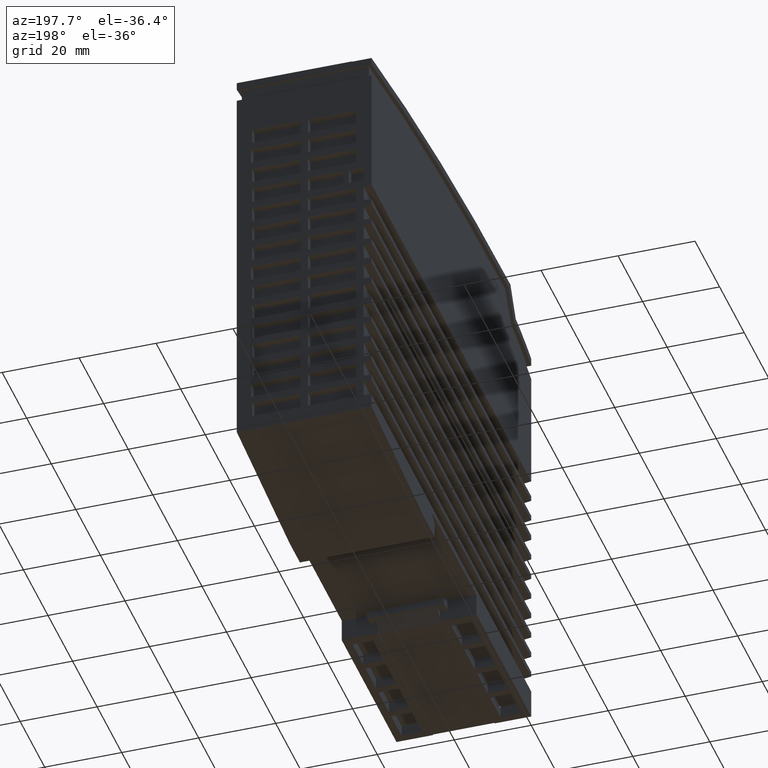
[diagram: clean part render]
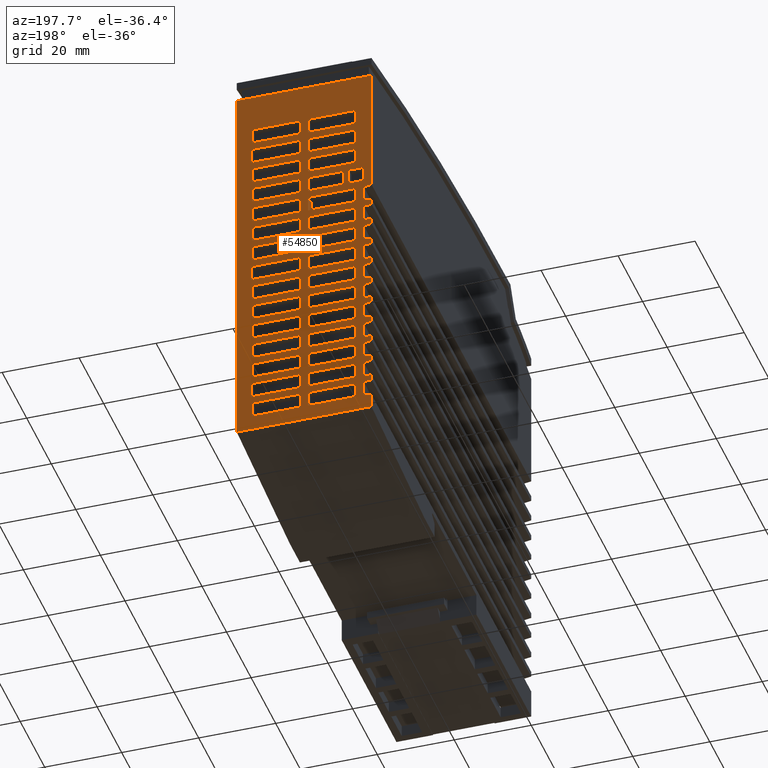
[diagram: same view with one face highlighted and labeled with its STEP entity id]
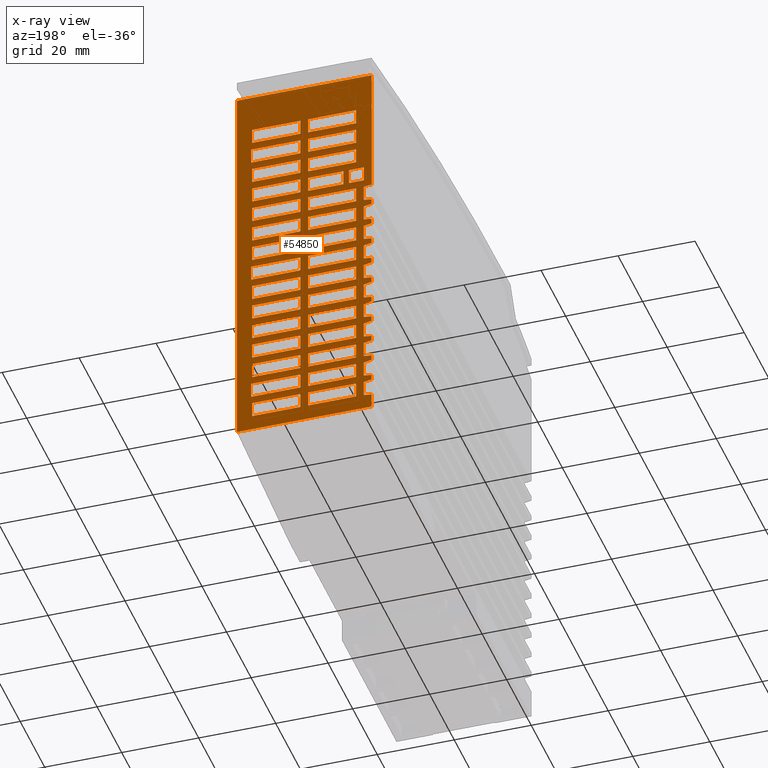
[diagram: x-ray of the same camera — body ghosted, the highlighted face saturated]
A machine part, auxiliary view. The second image highlights one B-rep face of the part: STEP entity #54850.
The next image is the same camera in x-ray: the body ghosted, the highlighted face saturated — about 0% of this face is hidden behind the body in this view.
In plain terms, the highlighted planar face has unit normal (0, 1, 0).
Its self-contained STEP definition (entity closure, byte-faithful):
#2260=CARTESIAN_POINT('',(99.8535034967815,130.,-43.5));
#2270=VERTEX_POINT('',#2260);
#2300=CARTESIAN_POINT('',(0.,130.,-43.5));
#2310=DIRECTION('',(-1.,0.,0.));
#2320=VECTOR('',#2310,1.);
#2330=LINE('',#2300,#2320);
#2340=CARTESIAN_POINT('',(-1.9999999999992,130.,-43.5));
#2350=VERTEX_POINT('',#2340);
#2360=EDGE_CURVE('',#2270,#2350,#2330,.T.);
#3640=CARTESIAN_POINT('',(-1.99999999999918,130.,-8.5));
#3650=VERTEX_POINT('',#3640);
#3700=CARTESIAN_POINT('',(-1.99999999999921,130.,0.));
#3710=DIRECTION('',(0.,0.,-1.));
#3720=VECTOR('',#3710,1.);
#3730=LINE('',#3700,#3720);
#3740=EDGE_CURVE('',#3650,#2350,#3730,.T.);
#4390=CARTESIAN_POINT('',(99.8535034967815,130.,-8.5));
#4400=VERTEX_POINT('',#4390);
#4430=CARTESIAN_POINT('',(99.8535034967811,130.,-44.0000000000083));
#4440=DIRECTION('',(0.,0.,1.));
#4450=VECTOR('',#4440,1.);
#4460=LINE('',#4430,#4450);
#4470=EDGE_CURVE('',#2270,#4400,#4460,.T.);
#9950=CARTESIAN_POINT('',(44.,130.,-12.5));
#9960=VERTEX_POINT('',#9950);
#10130=CARTESIAN_POINT('',(48.,130.,-12.5));
#10140=VERTEX_POINT('',#10130);
#10170=CARTESIAN_POINT('',(0.,130.,-12.5));
#10180=DIRECTION('',(-1.,0.,0.));
#10190=VECTOR('',#10180,1.);
#10200=LINE('',#10170,#10190);
#10210=EDGE_CURVE('',#10140,#9960,#10200,.T.);
#10960=CARTESIAN_POINT('',(38.,130.,-12.5));
#10970=VERTEX_POINT('',#10960);
#11140=CARTESIAN_POINT('',(42.,130.,-12.5));
#11150=VERTEX_POINT('',#11140);
#11180=CARTESIAN_POINT('',(0.,130.,-12.5));
#11190=DIRECTION('',(-1.,0.,0.));
#11200=VECTOR('',#11190,1.);
#11210=LINE('',#11180,#11200);
#11220=EDGE_CURVE('',#11150,#10970,#11210,.T.);
#11430=CARTESIAN_POINT('',(7.99834045293001,130.,-27.));
#11440=VERTEX_POINT('',#11430);
#11610=CARTESIAN_POINT('',(12.,130.,-27.));
#11620=VERTEX_POINT('',#11610);
#11650=CARTESIAN_POINT('',(0.,130.,-27.));
#11660=DIRECTION('',(-1.,0.,0.));
#11670=VECTOR('',#11660,1.);
#11680=LINE('',#11650,#11670);
#11690=EDGE_CURVE('',#11620,#11440,#11680,.T.);
#12000=CARTESIAN_POINT('',(54.3000000000001,130.,-8.5));
#12010=VERTEX_POINT('',#12000);
#12040=CARTESIAN_POINT('',(0.,130.,-8.5));
#12050=DIRECTION('',(-1.,0.,0.));
#12060=VECTOR('',#12050,1.);
#12070=LINE('',#12040,#12060);
#12080=CARTESIAN_POINT('',(55.6999999999999,130.,-8.5));
#12090=VERTEX_POINT('',#12080);
#12100=EDGE_CURVE('',#12090,#12010,#12070,.T.);
#12370=CARTESIAN_POINT('',(26.,130.,-39.5));
#12380=VERTEX_POINT('',#12370);
#12550=CARTESIAN_POINT('',(26.,130.,-27.));
#12560=VERTEX_POINT('',#12550);
#12590=CARTESIAN_POINT('',(26.,130.,0.));
#12600=DIRECTION('',(0.,0.,-1.));
#12610=VECTOR('',#12600,1.);
#12620=LINE('',#12590,#12610);
#12630=EDGE_CURVE('',#12560,#12380,#12620,.T.);
#12940=CARTESIAN_POINT('',(36.3000000000004,130.,-8.5));
#12950=VERTEX_POINT('',#12940);
#12980=CARTESIAN_POINT('',(0.,130.,-8.5));
#12990=DIRECTION('',(-1.,0.,0.));
#13000=VECTOR('',#12990,1.);
#13010=LINE('',#12980,#13000);
#13020=CARTESIAN_POINT('',(37.6999999999996,130.,-8.50000000000001));
#13030=VERTEX_POINT('',#13020);
#13040=EDGE_CURVE('',#13030,#12950,#13010,.T.);
#13690=CARTESIAN_POINT('',(79.99834045293,130.,-27.));
#13700=VERTEX_POINT('',#13690);
#13870=CARTESIAN_POINT('',(84.,130.,-27.));
#13880=VERTEX_POINT('',#13870);
#13910=CARTESIAN_POINT('',(0.,130.,-27.));
#13920=DIRECTION('',(-1.,0.,0.));
#13930=VECTOR('',#13920,1.);
#13940=LINE('',#13910,#13930);
#13950=EDGE_CURVE('',#13880,#13700,#13940,.T.);
#14160=CARTESIAN_POINT('',(2.,130.,-27.));
#14170=VERTEX_POINT('',#14160);
#14340=CARTESIAN_POINT('',(6.,130.,-27.));
#14350=VERTEX_POINT('',#14340);
#14380=CARTESIAN_POINT('',(0.,130.,-27.));
#14390=DIRECTION('',(-1.,0.,0.));
#14400=VECTOR('',#14390,1.);
#14410=LINE('',#14380,#14400);
#14420=EDGE_CURVE('',#14350,#14170,#14410,.T.);
#15050=CARTESIAN_POINT('',(32.,130.,-12.5));
#15060=VERTEX_POINT('',#15050);
#15230=CARTESIAN_POINT('',(36.,130.,-12.5));
#15240=VERTEX_POINT('',#15230);
#15270=CARTESIAN_POINT('',(0.,130.,-12.5));
#15280=DIRECTION('',(-1.,0.,0.));
#15290=VECTOR('',#15280,1.);
#15300=LINE('',#15270,#15290);
#15310=EDGE_CURVE('',#15240,#15060,#15300,.T.);
#15520=CARTESIAN_POINT('',(50.,130.,-25.));
#15530=VERTEX_POINT('',#15520);
#15700=CARTESIAN_POINT('',(50.,130.,-12.5));
#15710=VERTEX_POINT('',#15700);
#15740=CARTESIAN_POINT('',(50.,130.,0.));
#15750=DIRECTION('',(0.,0.,-1.));
#15760=VECTOR('',#15750,1.);
#15770=LINE('',#15740,#15760);
#15780=EDGE_CURVE('',#15710,#15530,#15770,.T.);
#16080=CARTESIAN_POINT('',(36.,130.,-25.));
#16090=VERTEX_POINT('',#16080);
#16120=CARTESIAN_POINT('',(36.,130.,0.));
#16130=DIRECTION('',(0.,0.,1.));
#16140=VECTOR('',#16130,1.);
#16150=LINE('',#16120,#16140);
#16160=EDGE_CURVE('',#16090,#15240,#16150,.T.);
#16370=CARTESIAN_POINT('',(66.,130.,-12.5));
#16380=VERTEX_POINT('',#16370);
#16460=CARTESIAN_POINT('',(66.,130.,-25.));
#16470=VERTEX_POINT('',#16460);
#16500=CARTESIAN_POINT('',(66.,130.,0.));
#16510=DIRECTION('',(0.,0.,1.));
#16520=VECTOR('',#16510,1.);
#16530=LINE('',#16500,#16520);
#16540=EDGE_CURVE('',#16470,#16380,#16530,.T.);
#17290=CARTESIAN_POINT('',(6.,130.,-39.5));
#17300=VERTEX_POINT('',#17290);
#17470=CARTESIAN_POINT('',(2.,130.,-39.5));
#17480=VERTEX_POINT('',#17470);
#17510=CARTESIAN_POINT('',(0.,130.,-39.5));
#17520=DIRECTION('',(1.,0.,0.));
#17530=VECTOR('',#17520,1.);
#17540=LINE('',#17510,#17530);
#17550=EDGE_CURVE('',#17480,#17300,#17540,.T.);
#17760=CARTESIAN_POINT('',(14.,130.,-39.5));
#17770=VERTEX_POINT('',#17760);
#17940=CARTESIAN_POINT('',(14.,130.,-27.));
#17950=VERTEX_POINT('',#17940);
#17980=CARTESIAN_POINT('',(14.,130.,0.));
#17990=DIRECTION('',(0.,0.,-1.));
#18000=VECTOR('',#17990,1.);
#18010=LINE('',#17980,#18000);
#18020=EDGE_CURVE('',#17950,#17770,#18010,.T.);
#18230=CARTESIAN_POINT('',(48.,130.,-25.));
#18240=VERTEX_POINT('',#18230);
#18410=CARTESIAN_POINT('',(44.,130.,-25.));
#18420=VERTEX_POINT('',#18410);
#18450=CARTESIAN_POINT('',(0.,130.,-25.));
#18460=DIRECTION('',(1.,0.,0.));
#18470=VECTOR('',#18460,1.);
#18480=LINE('',#18450,#18470);
#18490=EDGE_CURVE('',#18420,#18240,#18480,.T.);
#18790=CARTESIAN_POINT('',(84.,130.,-39.75833766019));
#18800=VERTEX_POINT('',#18790);
#18830=CARTESIAN_POINT('',(84.,130.,0.));
#18840=DIRECTION('',(0.,0.,1.));
#18850=VECTOR('',#18840,1.);
#18860=LINE('',#18830,#18850);
#18870=EDGE_CURVE('',#18800,#13880,#18860,.T.);
#19080=CARTESIAN_POINT('',(7.99834045293001,130.,-39.75833766019));
#19090=VERTEX_POINT('',#19080);
#19140=CARTESIAN_POINT('',(7.99834045293001,130.,0.));
#19150=DIRECTION('',(0.,0.,-1.));
#19160=VECTOR('',#19150,1.);
#19170=LINE('',#19140,#19160);
#19180=EDGE_CURVE('',#11440,#19090,#19170,.T.);
#19480=CARTESIAN_POINT('',(42.,130.,-25.));
#19490=VERTEX_POINT('',#19480);
#19520=CARTESIAN_POINT('',(42.,130.,0.));
#19530=DIRECTION('',(0.,0.,1.));
#19540=VECTOR('',#19530,1.);
#19550=LINE('',#19520,#19540);
#19560=EDGE_CURVE('',#19490,#11150,#19550,.T.);
#19810=CARTESIAN_POINT('',(44.,130.,0.));
#19820=DIRECTION('',(0.,0.,-1.));
#19830=VECTOR('',#19820,1.);
#19840=LINE('',#19810,#19830);
#19850=EDGE_CURVE('',#9960,#18420,#19840,.T.);
#20060=CARTESIAN_POINT('',(86.,130.,-27.));
#20070=VERTEX_POINT('',#20060);
#20240=CARTESIAN_POINT('',(90.,130.,-27.));
#20250=VERTEX_POINT('',#20240);
#20280=CARTESIAN_POINT('',(0.,130.,-27.));
#20290=DIRECTION('',(-1.,0.,0.));
#20300=VECTOR('',#20290,1.);
#20310=LINE('',#20280,#20300);
#20320=EDGE_CURVE('',#20250,#20070,#20310,.T.);
#20530=CARTESIAN_POINT('',(32.,130.,-39.5));
#20540=VERTEX_POINT('',#20530);
#20710=CARTESIAN_POINT('',(32.,130.,-27.));
#20720=VERTEX_POINT('',#20710);
#20750=CARTESIAN_POINT('',(32.,130.,0.));
#20760=DIRECTION('',(0.,0.,-1.));
#20770=VECTOR('',#20760,1.);
#20780=LINE('',#20750,#20770);
#20790=EDGE_CURVE('',#20720,#20540,#20780,.T.);
#21000=CARTESIAN_POINT('',(78.,130.,-27.));
#21010=VERTEX_POINT('',#21000);
#21180=CARTESIAN_POINT('',(78.,130.,-39.5));
#21190=VERTEX_POINT('',#21180);
#21220=CARTESIAN_POINT('',(78.,130.,0.));
#21230=DIRECTION('',(0.,0.,1.));
#21240=VECTOR('',#21230,1.);
#21250=LINE('',#21220,#21240);
#21260=EDGE_CURVE('',#21190,#21010,#21250,.T.);
#21470=CARTESIAN_POINT('',(90.,130.,-25.));
#21480=VERTEX_POINT('',#21470);
#21650=CARTESIAN_POINT('',(86.,130.,-25.));
#21660=VERTEX_POINT('',#21650);
#21690=CARTESIAN_POINT('',(0.,130.,-25.));
#21700=DIRECTION('',(1.,0.,0.));
#21710=VECTOR('',#21700,1.);
#21720=LINE('',#21690,#21710);
#21730=EDGE_CURVE('',#21660,#21480,#21720,.T.);
#21940=CARTESIAN_POINT('',(79.99834045293,130.,-39.75833766019));
#21950=VERTEX_POINT('',#21940);
#22070=CARTESIAN_POINT('',(79.99834045293,130.,0.));
#22080=DIRECTION('',(0.,0.,-1.));
#22090=VECTOR('',#22080,1.);
#22100=LINE('',#22070,#22090);
#22110=EDGE_CURVE('',#13700,#21950,#22100,.T.);
#22420=CARTESIAN_POINT('',(29.9999999999995,130.,-10.5));
#22430=VERTEX_POINT('',#22420);
#22460=CARTESIAN_POINT('',(31.575000000004,130.,0.));
#22470=DIRECTION('',(-0.148340452930653,0.,-0.988936352868236));
#22480=VECTOR('',#22470,1.);
#22490=LINE('',#22460,#22480);
#22500=CARTESIAN_POINT('',(30.3000000000004,130.,-8.50000000000001));
#22510=VERTEX_POINT('',#22500);
#22520=EDGE_CURVE('',#22510,#22430,#22490,.T.);
#22790=CARTESIAN_POINT('',(30.,130.,-39.5));
#22800=VERTEX_POINT('',#22790);
#22920=CARTESIAN_POINT('',(0.,130.,-39.5));
#22930=DIRECTION('',(1.,0.,0.));
#22940=VECTOR('',#22930,1.);
#22950=LINE('',#22920,#22940);
#22960=EDGE_CURVE('',#12380,#22800,#22950,.T.);
#23430=CARTESIAN_POINT('',(6.42499999999596,130.,0.));
#23440=DIRECTION('',(-0.148340452930656,0.,0.988936352868236));
#23450=VECTOR('',#23440,1.);
#23460=LINE('',#23430,#23450);
#23470=CARTESIAN_POINT('',(8.00000000000043,130.,-10.5));
#23480=VERTEX_POINT('',#23470);
#23490=CARTESIAN_POINT('',(7.69999999999958,130.,-8.50000000000001));
#23500=VERTEX_POINT('',#23490);
#23510=EDGE_CURVE('',#23480,#23500,#23460,.T.);
#24040=CARTESIAN_POINT('',(2.00000000000043,130.,-10.5));
#24050=VERTEX_POINT('',#24040);
#24080=CARTESIAN_POINT('',(0.,130.,-10.5));
#24090=DIRECTION('',(1.,0.,0.));
#24100=VECTOR('',#24090,1.);
#24110=LINE('',#24080,#24100);
#24120=CARTESIAN_POINT('',(5.99999999999955,130.,-10.5));
#24130=VERTEX_POINT('',#24120);
#24140=EDGE_CURVE('',#24050,#24130,#24110,.T.);
#24600=CARTESIAN_POINT('',(18.,130.,-12.5));
#24610=VERTEX_POINT('',#24600);
#24780=CARTESIAN_POINT('',(18.,130.,-25.));
#24790=VERTEX_POINT('',#24780);
#24820=CARTESIAN_POINT('',(18.,130.,0.));
#24830=DIRECTION('',(0.,0.,1.));
#24840=VECTOR('',#24830,1.);
#24850=LINE('',#24820,#24840);
#24860=EDGE_CURVE('',#24790,#24610,#24850,.T.);
#25120=CARTESIAN_POINT('',(7.57500000000396,130.,0.));
#25130=DIRECTION('',(-0.14834045293065,0.,-0.988936352868237));
#25140=VECTOR('',#25130,1.);
#25150=LINE('',#25120,#25140);
#25160=CARTESIAN_POINT('',(6.30000000000038,130.,-8.5));
#25170=VERTEX_POINT('',#25160);
#25180=EDGE_CURVE('',#25170,#24130,#25150,.T.);
#25450=CARTESIAN_POINT('',(90.,130.,-12.5));
#25460=VERTEX_POINT('',#25450);
#25580=CARTESIAN_POINT('',(90.,130.,0.));
#25590=DIRECTION('',(0.,0.,1.));
#25600=VECTOR('',#25590,1.);
#25610=LINE('',#25580,#25600);
#25620=EDGE_CURVE('',#21480,#25460,#25610,.T.);
#27680=CARTESIAN_POINT('',(26.,130.,-12.5));
#27690=VERTEX_POINT('',#27680);
#27860=CARTESIAN_POINT('',(30.,130.,-12.5));
#27870=VERTEX_POINT('',#27860);
#27900=CARTESIAN_POINT('',(0.,130.,-12.5));
#27910=DIRECTION('',(-1.,0.,0.));
#27920=VECTOR('',#27910,1.);
#27930=LINE('',#27900,#27920);
#27940=EDGE_CURVE('',#27870,#27690,#27930,.T.);
#28150=CARTESIAN_POINT('',(78.,130.,-12.5));
#28160=VERTEX_POINT('',#28150);
#28330=CARTESIAN_POINT('',(78.,130.,-25.));
#28340=VERTEX_POINT('',#28330);
#28370=CARTESIAN_POINT('',(78.,130.,0.));
#28380=DIRECTION('',(0.,0.,1.));
#28390=VECTOR('',#28380,1.);
#28400=LINE('',#28370,#28390);
#28410=EDGE_CURVE('',#28340,#28160,#28400,.T.);
#28620=CARTESIAN_POINT('',(74.,130.,-39.5));
#28630=VERTEX_POINT('',#28620);
#28800=CARTESIAN_POINT('',(74.,130.,-27.));
#28810=VERTEX_POINT('',#28800);
#28840=CARTESIAN_POINT('',(74.,130.,0.));
#28850=DIRECTION('',(0.,0.,-1.));
#28860=VECTOR('',#28850,1.);
#28870=LINE('',#28840,#28860);
#28880=EDGE_CURVE('',#28810,#28630,#28870,.T.);
#29090=CARTESIAN_POINT('',(8.,130.,-25.));
#29100=VERTEX_POINT('',#29090);
#29270=CARTESIAN_POINT('',(8.,130.,-12.5));
#29280=VERTEX_POINT('',#29270);
#29310=CARTESIAN_POINT('',(8.,130.,0.));
#29320=DIRECTION('',(0.,0.,-1.));
#29330=VECTOR('',#29320,1.);
#29340=LINE('',#29310,#29330);
#29350=EDGE_CURVE('',#29280,#29100,#29340,.T.);
#29560=CARTESIAN_POINT('',(24.,130.,-12.5));
#29570=VERTEX_POINT('',#29560);
#29740=CARTESIAN_POINT('',(24.,130.,-25.));
#29750=VERTEX_POINT('',#29740);
#29780=CARTESIAN_POINT('',(24.,130.,0.));
#29790=DIRECTION('',(0.,0.,1.));
#29800=VECTOR('',#29790,1.);
#29810=LINE('',#29780,#29800);
#29820=EDGE_CURVE('',#29750,#29570,#29810,.T.);
#31060=CARTESIAN_POINT('',(38.,130.,-39.5));
#31070=VERTEX_POINT('',#31060);
#31240=CARTESIAN_POINT('',(38.,130.,-27.));
#31250=VERTEX_POINT('',#31240);
#31280=CARTESIAN_POINT('',(38.,130.,0.));
#31290=DIRECTION('',(0.,0.,-1.));
#31300=VECTOR('',#31290,1.);
#31310=LINE('',#31280,#31300);
#31320=EDGE_CURVE('',#31250,#31070,#31310,.T.);
#32000=CARTESIAN_POINT('',(14.,130.,-25.));
#32010=VERTEX_POINT('',#32000);
#32180=CARTESIAN_POINT('',(14.,130.,-12.5));
#32190=VERTEX_POINT('',#32180);
#32220=CARTESIAN_POINT('',(14.,130.,0.));
#32230=DIRECTION('',(0.,0.,-1.));
#32240=VECTOR('',#32230,1.);
#32250=LINE('',#32220,#32240);
#32260=EDGE_CURVE('',#32190,#32010,#32250,.T.);
#32940=CARTESIAN_POINT('',(74.,130.,-12.5));
#32950=VERTEX_POINT('',#32940);
#33070=CARTESIAN_POINT('',(0.,130.,-12.5));
#33080=DIRECTION('',(-1.,0.,0.));
#33090=VECTOR('',#33080,1.);
#33100=LINE('',#33070,#33090);
#33110=EDGE_CURVE('',#28160,#32950,#33100,.T.);
#33410=CARTESIAN_POINT('',(30.,130.,-25.));
#33420=VERTEX_POINT('',#33410);
#33450=CARTESIAN_POINT('',(30.,130.,0.));
#33460=DIRECTION('',(0.,0.,1.));
#33470=VECTOR('',#33460,1.);
#33480=LINE('',#33450,#33470);
#33490=EDGE_CURVE('',#33420,#27870,#33480,.T.);
#33700=CARTESIAN_POINT('',(32.,130.,-25.));
#33710=VERTEX_POINT('',#33700);
#33830=CARTESIAN_POINT('',(32.,130.,0.));
#33840=DIRECTION('',(0.,0.,-1.));
#33850=VECTOR('',#33840,1.);
#33860=LINE('',#33830,#33850);
#33870=EDGE_CURVE('',#15060,#33710,#33860,.T.);
#34180=CARTESIAN_POINT('',(41.9999999999996,130.,-10.5));
#34190=VERTEX_POINT('',#34180);
#34220=CARTESIAN_POINT('',(43.575000000004,130.,0.));
#34230=DIRECTION('',(-0.148340452930654,0.,-0.988936352868236));
#34240=VECTOR('',#34230,1.);
#34250=LINE('',#34220,#34240);
#34260=CARTESIAN_POINT('',(42.3000000000004,130.,-8.5));
#34270=VERTEX_POINT('',#34260);
#34280=EDGE_CURVE('',#34270,#34190,#34250,.T.);
#34590=CARTESIAN_POINT('',(0.,130.,-25.));
#34600=DIRECTION('',(1.,0.,0.));
#34610=VECTOR('',#34600,1.);
#34620=LINE('',#34590,#34610);
#34630=EDGE_CURVE('',#33710,#16090,#34620,.T.);
#34940=CARTESIAN_POINT('',(50.0000000000004,130.,-10.5));
#34950=VERTEX_POINT('',#34940);
#34980=CARTESIAN_POINT('',(0.,130.,-10.5));
#34990=DIRECTION('',(1.,0.,0.));
#35000=VECTOR('',#34990,1.);
#35010=LINE('',#34980,#35000);
#35020=CARTESIAN_POINT('',(53.9999999999999,130.,-10.5));
#35030=VERTEX_POINT('',#35020);
#35040=EDGE_CURVE('',#34950,#35030,#35010,.T.);
#35730=CARTESIAN_POINT('',(60.,130.,-12.5));
#35740=VERTEX_POINT('',#35730);
#35910=CARTESIAN_POINT('',(60.,130.,-25.));
#35920=VERTEX_POINT('',#35910);
#35950=CARTESIAN_POINT('',(60.,130.,0.));
#35960=DIRECTION('',(0.,0.,1.));
#35970=VECTOR('',#35960,1.);
#35980=LINE('',#35950,#35970);
#35990=EDGE_CURVE('',#35920,#35740,#35980,.T.);
#36200=CARTESIAN_POINT('',(54.,130.,-12.5));
#36210=VERTEX_POINT('',#36200);
#36380=CARTESIAN_POINT('',(54.,130.,-25.));
#36390=VERTEX_POINT('',#36380);
#36420=CARTESIAN_POINT('',(54.,130.,0.));
#36430=DIRECTION('',(0.,0.,1.));
#36440=VECTOR('',#36430,1.);
#36450=LINE('',#36420,#36440);
#36460=EDGE_CURVE('',#36390,#36210,#36450,.T.);
#36670=CARTESIAN_POINT('',(84.,130.,-25.));
#36680=VERTEX_POINT('',#36670);
#36850=CARTESIAN_POINT('',(80.,130.,-25.));
#36860=VERTEX_POINT('',#36850);
#36890=CARTESIAN_POINT('',(0.,130.,-25.));
#36900=DIRECTION('',(1.,0.,0.));
#36910=VECTOR('',#36900,1.);
#36920=LINE('',#36890,#36910);
#36930=EDGE_CURVE('',#36860,#36680,#36920,.T.);
#37470=CARTESIAN_POINT('',(72.,130.,-27.));
#37480=VERTEX_POINT('',#37470);
#37650=CARTESIAN_POINT('',(72.,130.,-39.5));
#37660=VERTEX_POINT('',#37650);
#37690=CARTESIAN_POINT('',(72.,130.,0.));
#37700=DIRECTION('',(0.,0.,1.));
#37710=VECTOR('',#37700,1.);
#37720=LINE('',#37690,#37710);
#37730=EDGE_CURVE('',#37660,#37480,#37720,.T.);
#38300=CARTESIAN_POINT('',(30.424999999996,130.,0.));
#38310=DIRECTION('',(-0.148340452930654,0.,0.988936352868236));
#38320=VECTOR('',#38310,1.);
#38330=LINE('',#38300,#38320);
#38340=CARTESIAN_POINT('',(32.0000000000004,130.,-10.5));
#38350=VERTEX_POINT('',#38340);
#38360=CARTESIAN_POINT('',(31.6999999999996,130.,-8.50000000000001));
#38370=VERTEX_POINT('',#38360);
#38380=EDGE_CURVE('',#38350,#38370,#38330,.T.);
#38810=CARTESIAN_POINT('',(62.,130.,-27.));
#38820=VERTEX_POINT('',#38810);
#38990=CARTESIAN_POINT('',(66.,130.,-27.));
#39000=VERTEX_POINT('',#38990);
#39030=CARTESIAN_POINT('',(0.,130.,-27.));
#39040=DIRECTION('',(-1.,0.,0.));
#39050=VECTOR('',#39040,1.);
#39060=LINE('',#39030,#39050);
#39070=EDGE_CURVE('',#39000,#38820,#39060,.T.);
#39750=CARTESIAN_POINT('',(18.,130.,-39.5));
#39760=VERTEX_POINT('',#39750);
#39810=CARTESIAN_POINT('',(0.,130.,-39.5));
#39820=DIRECTION('',(1.,0.,0.));
#39830=VECTOR('',#39820,1.);
#39840=LINE('',#39810,#39830);
#39850=EDGE_CURVE('',#17770,#39760,#39840,.T.);
#40420=CARTESIAN_POINT('',(17.9999999999995,130.,-10.5));
#40430=VERTEX_POINT('',#40420);
#40460=CARTESIAN_POINT('',(19.575000000004,130.,0.));
#40470=DIRECTION('',(-0.148340452930649,0.,-0.988936352868237));
#40480=VECTOR('',#40470,1.);
#40490=LINE('',#40460,#40480);
#40500=CARTESIAN_POINT('',(18.3000000000004,130.,-8.5));
#40510=VERTEX_POINT('',#40500);
#40520=EDGE_CURVE('',#40510,#40430,#40490,.T.);
#40830=CARTESIAN_POINT('',(48.,130.,0.));
#40840=DIRECTION('',(0.,0.,1.));
#40850=VECTOR('',#40840,1.);
#40860=LINE('',#40830,#40850);
#40870=EDGE_CURVE('',#18240,#10140,#40860,.T.);
#41080=CARTESIAN_POINT('',(68.,130.,-39.5));
#41090=VERTEX_POINT('',#41080);
#41260=CARTESIAN_POINT('',(68.,130.,-27.));
#41270=VERTEX_POINT('',#41260);
#41300=CARTESIAN_POINT('',(68.,130.,0.));
#41310=DIRECTION('',(0.,0.,-1.));
#41320=VECTOR('',#41310,1.);
#41330=LINE('',#41300,#41320);
#41340=EDGE_CURVE('',#41270,#41090,#41330,.T.);
#41550=CARTESIAN_POINT('',(86.,130.,-12.5));
#41560=VERTEX_POINT('',#41550);
#41680=CARTESIAN_POINT('',(0.,130.,-12.5));
#41690=DIRECTION('',(-1.,0.,0.));
#41700=VECTOR('',#41690,1.);
#41710=LINE('',#41680,#41700);
#41720=EDGE_CURVE('',#25460,#41560,#41710,.T.);
#42260=CARTESIAN_POINT('',(62.,130.,-25.));
#42270=VERTEX_POINT('',#42260);
#42350=CARTESIAN_POINT('',(62.,130.,-12.5));
#42360=VERTEX_POINT('',#42350);
#42390=CARTESIAN_POINT('',(62.,130.,0.));
#42400=DIRECTION('',(0.,0.,-1.));
#42410=VECTOR('',#42400,1.);
#42420=LINE('',#42390,#42410);
#42430=EDGE_CURVE('',#42360,#42270,#42420,.T.);
#42730=CARTESIAN_POINT('',(80.,130.,-12.5));
#42740=VERTEX_POINT('',#42730);
#42770=CARTESIAN_POINT('',(80.,130.,0.));
#42780=DIRECTION('',(0.,0.,-1.));
#42790=VECTOR('',#42780,1.);
#42800=LINE('',#42770,#42790);
#42810=EDGE_CURVE('',#42740,#36860,#42800,.T.);
#43020=CARTESIAN_POINT('',(26.,130.,-25.));
#43030=VERTEX_POINT('',#43020);
#43080=CARTESIAN_POINT('',(26.,130.,0.));
#43090=DIRECTION('',(0.,0.,-1.));
#43100=VECTOR('',#43090,1.);
#43110=LINE('',#43080,#43100);
#43120=EDGE_CURVE('',#27690,#43030,#43110,.T.);
#45430=CARTESIAN_POINT('',(102.420001084201,130.,-7.60484));
#45440=DIRECTION('',(-0.,1.,0.));
#45450=DIRECTION('',(1.,0.,0.));
#45460=AXIS2_PLACEMENT_3D('',#45430,#45440,#45450);
#45470=PLANE('',#45460);
#45480=CARTESIAN_POINT('',(0.,130.,-39.75833766019));
#45490=DIRECTION('',(1.,0.,0.));
#45500=VECTOR('',#45490,1.);
#45510=LINE('',#45480,#45500);
#45520=CARTESIAN_POINT('',(43.99834045293,130.,-39.75833766019));
#45530=VERTEX_POINT('',#45520);
#45540=CARTESIAN_POINT('',(48.,130.,-39.75833766019));
#45550=VERTEX_POINT('',#45540);
#45560=EDGE_CURVE('',#45530,#45550,#45510,.T.);
#45570=ORIENTED_EDGE('',*,*,#45560,.T.);
#45580=CARTESIAN_POINT('',(43.99834045293,130.,0.));
#45590=DIRECTION('',(0.,0.,-1.));
#45600=VECTOR('',#45590,1.);
#45610=LINE('',#45580,#45600);
#45620=CARTESIAN_POINT('',(43.99834045293,130.,-27.));
#45630=VERTEX_POINT('',#45620);
#45640=EDGE_CURVE('',#45630,#45530,#45610,.T.);
#45650=ORIENTED_EDGE('',*,*,#45640,.T.);
#45660=CARTESIAN_POINT('',(0.,130.,-27.));
#45670=DIRECTION('',(-1.,0.,0.));
#45680=VECTOR('',#45670,1.);
#45690=LINE('',#45660,#45680);
#45700=CARTESIAN_POINT('',(48.,130.,-27.));
#45710=VERTEX_POINT('',#45700);
#45720=EDGE_CURVE('',#45710,#45630,#45690,.T.);
#45730=ORIENTED_EDGE('',*,*,#45720,.T.);
#45740=CARTESIAN_POINT('',(48.,130.,0.));
#45750=DIRECTION('',(0.,0.,1.));
#45760=VECTOR('',#45750,1.);
#45770=LINE('',#45740,#45760);
#45780=EDGE_CURVE('',#45550,#45710,#45770,.T.);
#45790=ORIENTED_EDGE('',*,*,#45780,.T.);
#45800=EDGE_LOOP('',(#45790,#45730,#45650,#45570));
#45810=FACE_BOUND('',#45800,.T.);
#45820=CARTESIAN_POINT('',(24.,130.,0.));
#45830=DIRECTION('',(0.,0.,1.));
#45840=VECTOR('',#45830,1.);
#45850=LINE('',#45820,#45840);
#45860=CARTESIAN_POINT('',(24.,130.,-39.5));
#45870=VERTEX_POINT('',#45860);
#45880=CARTESIAN_POINT('',(24.,130.,-27.));
#45890=VERTEX_POINT('',#45880);
#45900=EDGE_CURVE('',#45870,#45890,#45850,.T.);
#45910=ORIENTED_EDGE('',*,*,#45900,.T.);
#45920=CARTESIAN_POINT('',(0.,130.,-39.5));
#45930=DIRECTION('',(1.,0.,0.));
#45940=VECTOR('',#45930,1.);
#45950=LINE('',#45920,#45940);
#45960=CARTESIAN_POINT('',(20.,130.,-39.5));
#45970=VERTEX_POINT('',#45960);
#45980=EDGE_CURVE('',#45970,#45870,#45950,.T.);
#45990=ORIENTED_EDGE('',*,*,#45980,.T.);
#46000=CARTESIAN_POINT('',(20.,130.,0.));
#46010=DIRECTION('',(0.,0.,-1.));
#46020=VECTOR('',#46010,1.);
#46030=LINE('',#46000,#46020);
#46040=CARTESIAN_POINT('',(20.,130.,-27.));
#46050=VERTEX_POINT('',#46040);
#46060=EDGE_CURVE('',#46050,#45970,#46030,.T.);
#46070=ORIENTED_EDGE('',*,*,#46060,.T.);
#46080=CARTESIAN_POINT('',(0.,130.,-27.));
#46090=DIRECTION('',(-1.,0.,0.));
#46100=VECTOR('',#46090,1.);
#46110=LINE('',#46080,#46100);
#46120=EDGE_CURVE('',#45890,#46050,#46110,.T.);
#46130=ORIENTED_EDGE('',*,*,#46120,.T.);
#46140=EDGE_LOOP('',(#46130,#46070,#45990,#45910));
#46150=FACE_BOUND('',#46140,.T.);
#46160=CARTESIAN_POINT('',(68.,130.,0.));
#46170=DIRECTION('',(0.,0.,-1.));
#46180=VECTOR('',#46170,1.);
#46190=LINE('',#46160,#46180);
#46200=CARTESIAN_POINT('',(68.,130.,-10.5));
#46210=VERTEX_POINT('',#46200);
#46220=CARTESIAN_POINT('',(68.,130.,-14.387867965652));
#46230=VERTEX_POINT('',#46220);
#46240=EDGE_CURVE('',#46210,#46230,#46190,.T.);
#46250=ORIENTED_EDGE('',*,*,#46240,.T.);
#46260=CARTESIAN_POINT('',(0.,130.,-10.5));
#46270=DIRECTION('',(-1.,0.,0.));
#46280=VECTOR('',#46270,1.);
#46290=LINE('',#46260,#46280);
#46300=CARTESIAN_POINT('',(72.,130.,-10.5));
#46310=VERTEX_POINT('',#46300);
#46320=EDGE_CURVE('',#46310,#46210,#46290,.T.);
#46330=ORIENTED_EDGE('',*,*,#46320,.T.);
#46340=CARTESIAN_POINT('',(72.,130.,0.));
#46350=DIRECTION('',(0.,0.,1.));
#46360=VECTOR('',#46350,1.);
#46370=LINE('',#46340,#46360);
#46380=CARTESIAN_POINT('',(72.,130.,-14.387867965652));
#46390=VERTEX_POINT('',#46380);
#46400=EDGE_CURVE('',#46390,#46310,#46370,.T.);
#46410=ORIENTED_EDGE('',*,*,#46400,.T.);
#46420=CARTESIAN_POINT('',(0.,130.,-14.387867965652));
#46430=DIRECTION('',(1.,0.,0.));
#46440=VECTOR('',#46430,1.);
#46450=LINE('',#46420,#46440);
#46460=EDGE_CURVE('',#46230,#46390,#46450,.T.);
#46470=ORIENTED_EDGE('',*,*,#46460,.T.);
#46480=EDGE_LOOP('',(#46470,#46410,#46330,#46250));
#46490=FACE_BOUND('',#46480,.T.);
#46500=CARTESIAN_POINT('',(0.,130.,-12.5));
#46510=DIRECTION('',(-1.,0.,0.));
#46520=VECTOR('',#46510,1.);
#46530=LINE('',#46500,#46520);
#46540=CARTESIAN_POINT('',(20.,130.,-12.5));
#46550=VERTEX_POINT('',#46540);
#46560=EDGE_CURVE('',#29570,#46550,#46530,.T.);
#46570=ORIENTED_EDGE('',*,*,#46560,.T.);
#46580=ORIENTED_EDGE('',*,*,#29820,.T.);
#46590=CARTESIAN_POINT('',(0.,130.,-25.));
#46600=DIRECTION('',(1.,0.,0.));
#46610=VECTOR('',#46600,1.);
#46620=LINE('',#46590,#46610);
#46630=CARTESIAN_POINT('',(20.,130.,-25.));
#46640=VERTEX_POINT('',#46630);
#46650=EDGE_CURVE('',#46640,#29750,#46620,.T.);
#46660=ORIENTED_EDGE('',*,*,#46650,.T.);
#46670=CARTESIAN_POINT('',(20.,130.,0.));
#46680=DIRECTION('',(0.,0.,-1.));
#46690=VECTOR('',#46680,1.);
#46700=LINE('',#46670,#46690);
#46710=EDGE_CURVE('',#46550,#46640,#46700,.T.);
#46720=ORIENTED_EDGE('',*,*,#46710,.T.);
#46730=EDGE_LOOP('',(#46720,#46660,#46580,#46570));
#46740=FACE_BOUND('',#46730,.T.);
#46750=ORIENTED_EDGE('',*,*,#39070,.T.);
#46760=CARTESIAN_POINT('',(66.,130.,0.));
#46770=DIRECTION('',(0.,0.,1.));
#46780=VECTOR('',#46770,1.);
#46790=LINE('',#46760,#46780);
#46800=CARTESIAN_POINT('',(66.,130.,-39.5));
#46810=VERTEX_POINT('',#46800);
#46820=EDGE_CURVE('',#46810,#39000,#46790,.T.);
#46830=ORIENTED_EDGE('',*,*,#46820,.T.);
#46840=CARTESIAN_POINT('',(0.,130.,-39.5));
#46850=DIRECTION('',(1.,0.,0.));
#46860=VECTOR('',#46850,1.);
#46870=LINE('',#46840,#46860);
#46880=CARTESIAN_POINT('',(62.,130.,-39.5));
#46890=VERTEX_POINT('',#46880);
#46900=EDGE_CURVE('',#46890,#46810,#46870,.T.);
#46910=ORIENTED_EDGE('',*,*,#46900,.T.);
#46920=CARTESIAN_POINT('',(62.,130.,0.));
#46930=DIRECTION('',(0.,0.,-1.));
#46940=VECTOR('',#46930,1.);
#46950=LINE('',#46920,#46940);
#46960=EDGE_CURVE('',#38820,#46890,#46950,.T.);
#46970=ORIENTED_EDGE('',*,*,#46960,.T.);
#46980=EDGE_LOOP('',(#46970,#46910,#46830,#46750));
#46990=FACE_BOUND('',#46980,.T.);
#47000=ORIENTED_EDGE('',*,*,#14420,.T.);
#47010=CARTESIAN_POINT('',(6.,130.,0.));
#47020=DIRECTION('',(0.,0.,1.));
#47030=VECTOR('',#47020,1.);
#47040=LINE('',#47010,#47030);
#47050=EDGE_CURVE('',#17300,#14350,#47040,.T.);
#47060=ORIENTED_EDGE('',*,*,#47050,.T.);
#47070=ORIENTED_EDGE('',*,*,#17550,.T.);
#47080=CARTESIAN_POINT('',(2.,130.,0.));
#47090=DIRECTION('',(0.,0.,-1.));
#47100=VECTOR('',#47090,1.);
#47110=LINE('',#47080,#47100);
#47120=EDGE_CURVE('',#14170,#17480,#47110,.T.);
#47130=ORIENTED_EDGE('',*,*,#47120,.T.);
#47140=EDGE_LOOP('',(#47130,#47070,#47060,#47000));
#47150=FACE_BOUND('',#47140,.T.);
#47160=ORIENTED_EDGE('',*,*,#33110,.T.);
#47170=ORIENTED_EDGE('',*,*,#28410,.T.);
#47180=CARTESIAN_POINT('',(0.,130.,-25.));
#47190=DIRECTION('',(1.,0.,0.));
#47200=VECTOR('',#47190,1.);
#47210=LINE('',#47180,#47200);
#47220=CARTESIAN_POINT('',(74.,130.,-25.));
#47230=VERTEX_POINT('',#47220);
#47240=EDGE_CURVE('',#47230,#28340,#47210,.T.);
#47250=ORIENTED_EDGE('',*,*,#47240,.T.);
#47260=CARTESIAN_POINT('',(74.,130.,0.));
#47270=DIRECTION('',(0.,0.,-1.));
#47280=VECTOR('',#47270,1.);
#47290=LINE('',#47260,#47280);
#47300=EDGE_CURVE('',#32950,#47230,#47290,.T.);
#47310=ORIENTED_EDGE('',*,*,#47300,.T.);
#47320=EDGE_LOOP('',(#47310,#47250,#47170,#47160));
#47330=FACE_BOUND('',#47320,.T.);
#47340=CARTESIAN_POINT('',(0.,130.,-27.));
#47350=DIRECTION('',(-1.,0.,0.));
#47360=VECTOR('',#47350,1.);
#47370=LINE('',#47340,#47360);
#47380=EDGE_CURVE('',#21010,#28810,#47370,.T.);
#47390=ORIENTED_EDGE('',*,*,#47380,.T.);
#47400=ORIENTED_EDGE('',*,*,#21260,.T.);
#47410=CARTESIAN_POINT('',(0.,130.,-39.5));
#47420=DIRECTION('',(1.,0.,0.));
#47430=VECTOR('',#47420,1.);
#47440=LINE('',#47410,#47430);
#47450=EDGE_CURVE('',#28630,#21190,#47440,.T.);
#47460=ORIENTED_EDGE('',*,*,#47450,.T.);
#47470=ORIENTED_EDGE('',*,*,#28880,.T.);
#47480=EDGE_LOOP('',(#47470,#47460,#47400,#47390));
#47490=FACE_BOUND('',#47480,.T.);
#47500=CARTESIAN_POINT('',(0.,130.,-27.));
#47510=DIRECTION('',(-1.,0.,0.));
#47520=VECTOR('',#47510,1.);
#47530=LINE('',#47500,#47520);
#47540=EDGE_CURVE('',#37480,#41270,#47530,.T.);
#47550=ORIENTED_EDGE('',*,*,#47540,.T.);
#47560=ORIENTED_EDGE('',*,*,#37730,.T.);
#47570=CARTESIAN_POINT('',(0.,130.,-39.5));
#47580=DIRECTION('',(1.,0.,0.));
#47590=VECTOR('',#47580,1.);
#47600=LINE('',#47570,#47590);
#47610=EDGE_CURVE('',#41090,#37660,#47600,.T.);
#47620=ORIENTED_EDGE('',*,*,#47610,.T.);
#47630=ORIENTED_EDGE('',*,*,#41340,.T.);
#47640=EDGE_LOOP('',(#47630,#47620,#47560,#47550));
#47650=FACE_BOUND('',#47640,.T.);
#47660=ORIENTED_EDGE('',*,*,#13950,.T.);
#47670=ORIENTED_EDGE('',*,*,#18870,.T.);
#47680=CARTESIAN_POINT('',(0.,130.,-39.75833766019));
#47690=DIRECTION('',(1.,0.,0.));
#47700=VECTOR('',#47690,1.);
#47710=LINE('',#47680,#47700);
#47720=EDGE_CURVE('',#21950,#18800,#47710,.T.);
#47730=ORIENTED_EDGE('',*,*,#47720,.T.);
#47740=ORIENTED_EDGE('',*,*,#22110,.T.);
#47750=EDGE_LOOP('',(#47740,#47730,#47670,#47660));
#47760=FACE_BOUND('',#47750,.T.);
#47770=ORIENTED_EDGE('',*,*,#11220,.T.);
#47780=ORIENTED_EDGE('',*,*,#19560,.T.);
#47790=CARTESIAN_POINT('',(0.,130.,-25.));
#47800=DIRECTION('',(1.,0.,0.));
#47810=VECTOR('',#47800,1.);
#47820=LINE('',#47790,#47810);
#47830=CARTESIAN_POINT('',(38.,130.,-25.));
#47840=VERTEX_POINT('',#47830);
#47850=EDGE_CURVE('',#47840,#19490,#47820,.T.);
#47860=ORIENTED_EDGE('',*,*,#47850,.T.);
#47870=CARTESIAN_POINT('',(38.,130.,0.));
#47880=DIRECTION('',(0.,0.,-1.));
#47890=VECTOR('',#47880,1.);
#47900=LINE('',#47870,#47890);
#47910=EDGE_CURVE('',#10970,#47840,#47900,.T.);
#47920=ORIENTED_EDGE('',*,*,#47910,.T.);
#47930=EDGE_LOOP('',(#47920,#47860,#47780,#47770));
#47940=FACE_BOUND('',#47930,.T.);
#47950=CARTESIAN_POINT('',(6.,130.,0.));
#47960=DIRECTION('',(0.,0.,1.));
#47970=VECTOR('',#47960,1.);
#47980=LINE('',#47950,#47970);
#47990=CARTESIAN_POINT('',(6.,130.,-25.));
#48000=VERTEX_POINT('',#47990);
#48010=CARTESIAN_POINT('',(6.,130.,-12.5));
#48020=VERTEX_POINT('',#48010);
#48030=EDGE_CURVE('',#48000,#48020,#47980,.T.);
#48040=ORIENTED_EDGE('',*,*,#48030,.T.);
#48050=CARTESIAN_POINT('',(0.,130.,-25.));
#48060=DIRECTION('',(1.,0.,0.));
#48070=VECTOR('',#48060,1.);
#48080=LINE('',#48050,#48070);
#48090=CARTESIAN_POINT('',(2.,130.,-25.));
#48100=VERTEX_POINT('',#48090);
#48110=EDGE_CURVE('',#48100,#48000,#48080,.T.);
#48120=ORIENTED_EDGE('',*,*,#48110,.T.);
#48130=CARTESIAN_POINT('',(2.,130.,0.));
#48140=DIRECTION('',(0.,0.,-1.));
#48150=VECTOR('',#48140,1.);
#48160=LINE('',#48130,#48150);
#48170=CARTESIAN_POINT('',(2.,130.,-12.5));
#48180=VERTEX_POINT('',#48170);
#48190=EDGE_CURVE('',#48180,#48100,#48160,.T.);
#48200=ORIENTED_EDGE('',*,*,#48190,.T.);
#48210=CARTESIAN_POINT('',(0.,130.,-12.5));
#48220=DIRECTION('',(-1.,0.,0.));
#48230=VECTOR('',#48220,1.);
#48240=LINE('',#48210,#48230);
#48250=EDGE_CURVE('',#48020,#48180,#48240,.T.);
#48260=ORIENTED_EDGE('',*,*,#48250,.T.);
#48270=EDGE_LOOP('',(#48260,#48200,#48120,#48040));
#48280=FACE_BOUND('',#48270,.T.);
#48290=CARTESIAN_POINT('',(0.,130.,-12.5));
#48300=DIRECTION('',(-1.,0.,0.));
#48310=VECTOR('',#48300,1.);
#48320=LINE('',#48290,#48310);
#48330=CARTESIAN_POINT('',(56.,130.,-12.5));
#48340=VERTEX_POINT('',#48330);
#48350=EDGE_CURVE('',#35740,#48340,#48320,.T.);
#48360=ORIENTED_EDGE('',*,*,#48350,.T.);
#48370=ORIENTED_EDGE('',*,*,#35990,.T.);
#48380=CARTESIAN_POINT('',(0.,130.,-25.));
#48390=DIRECTION('',(1.,0.,0.));
#48400=VECTOR('',#48390,1.);
#48410=LINE('',#48380,#48400);
#48420=CARTESIAN_POINT('',(56.,130.,-25.));
#48430=VERTEX_POINT('',#48420);
#48440=EDGE_CURVE('',#48430,#35920,#48410,.T.);
#48450=ORIENTED_EDGE('',*,*,#48440,.T.);
#48460=CARTESIAN_POINT('',(56.,130.,0.));
#48470=DIRECTION('',(0.,0.,-1.));
#48480=VECTOR('',#48470,1.);
#48490=LINE('',#48460,#48480);
#48500=EDGE_CURVE('',#48340,#48430,#48490,.T.);
#48510=ORIENTED_EDGE('',*,*,#48500,.T.);
#48520=EDGE_LOOP('',(#48510,#48450,#48370,#48360));
#48530=FACE_BOUND('',#48520,.T.);
#48540=CARTESIAN_POINT('',(0.,130.,-39.75833766019));
#48550=DIRECTION('',(1.,0.,0.));
#48560=VECTOR('',#48550,1.);
#48570=LINE('',#48540,#48560);
#48580=CARTESIAN_POINT('',(12.,130.,-39.75833766019));
#48590=VERTEX_POINT('',#48580);
#48600=EDGE_CURVE('',#19090,#48590,#48570,.T.);
#48610=ORIENTED_EDGE('',*,*,#48600,.T.);
#48620=ORIENTED_EDGE('',*,*,#19180,.T.);
#48630=ORIENTED_EDGE('',*,*,#11690,.T.);
#48640=CARTESIAN_POINT('',(12.,130.,0.));
#48650=DIRECTION('',(0.,0.,1.));
#48660=VECTOR('',#48650,1.);
#48670=LINE('',#48640,#48660);
#48680=EDGE_CURVE('',#48590,#11620,#48670,.T.);
#48690=ORIENTED_EDGE('',*,*,#48680,.T.);
#48700=EDGE_LOOP('',(#48690,#48630,#48620,#48610));
#48710=FACE_BOUND('',#48700,.T.);
#48720=CARTESIAN_POINT('',(0.,130.,-12.5));
#48730=DIRECTION('',(-1.,0.,0.));
#48740=VECTOR('',#48730,1.);
#48750=LINE('',#48720,#48740);
#48760=EDGE_CURVE('',#16380,#42360,#48750,.T.);
#48770=ORIENTED_EDGE('',*,*,#48760,.T.);
#48780=ORIENTED_EDGE('',*,*,#16540,.T.);
#48790=CARTESIAN_POINT('',(0.,130.,-25.));
#48800=DIRECTION('',(1.,0.,0.));
#48810=VECTOR('',#48800,1.);
#48820=LINE('',#48790,#48810);
#48830=EDGE_CURVE('',#42270,#16470,#48820,.T.);
#48840=ORIENTED_EDGE('',*,*,#48830,.T.);
#48850=ORIENTED_EDGE('',*,*,#42430,.T.);
#48860=EDGE_LOOP('',(#48850,#48840,#48780,#48770));
#48870=FACE_BOUND('',#48860,.T.);
#48880=ORIENTED_EDGE('',*,*,#20320,.T.);
#48890=CARTESIAN_POINT('',(90.,130.,0.));
#48900=DIRECTION('',(0.,0.,1.));
#48910=VECTOR('',#48900,1.);
#48920=LINE('',#48890,#48910);
#48930=CARTESIAN_POINT('',(90.,130.,-39.5));
#48940=VERTEX_POINT('',#48930);
#48950=EDGE_CURVE('',#48940,#20250,#48920,.T.);
#48960=ORIENTED_EDGE('',*,*,#48950,.T.);
#48970=CARTESIAN_POINT('',(0.,130.,-39.5));
#48980=DIRECTION('',(1.,0.,0.));
#48990=VECTOR('',#48980,1.);
#49000=LINE('',#48970,#48990);
#49010=CARTESIAN_POINT('',(86.,130.,-39.5));
#49020=VERTEX_POINT('',#49010);
#49030=EDGE_CURVE('',#49020,#48940,#49000,.T.);
#49040=ORIENTED_EDGE('',*,*,#49030,.T.);
#49050=CARTESIAN_POINT('',(86.,130.,0.));
#49060=DIRECTION('',(0.,0.,-1.));
#49070=VECTOR('',#49060,1.);
#49080=LINE('',#49050,#49070);
#49090=EDGE_CURVE('',#20070,#49020,#49080,.T.);
#49100=ORIENTED_EDGE('',*,*,#49090,.T.);
#49110=EDGE_LOOP('',(#49100,#49040,#48960,#48880));
#49120=FACE_BOUND('',#49110,.T.);
#49130=CARTESIAN_POINT('',(30.,130.,0.));
#49140=DIRECTION('',(0.,0.,1.));
#49150=VECTOR('',#49140,1.);
#49160=LINE('',#49130,#49150);
#49170=CARTESIAN_POINT('',(30.,130.,-27.));
#49180=VERTEX_POINT('',#49170);
#49190=EDGE_CURVE('',#22800,#49180,#49160,.T.);
#49200=ORIENTED_EDGE('',*,*,#49190,.T.);
#49210=ORIENTED_EDGE('',*,*,#22960,.T.);
#49220=ORIENTED_EDGE('',*,*,#12630,.T.);
#49230=CARTESIAN_POINT('',(0.,130.,-27.));
#49240=DIRECTION('',(-1.,0.,0.));
#49250=VECTOR('',#49240,1.);
#49260=LINE('',#49230,#49250);
#49270=EDGE_CURVE('',#49180,#12560,#49260,.T.);
#49280=ORIENTED_EDGE('',*,*,#49270,.T.);
#49290=EDGE_LOOP('',(#49280,#49220,#49210,#49200));
#49300=FACE_BOUND('',#49290,.T.);
#49310=ORIENTED_EDGE('',*,*,#36460,.T.);
#49320=CARTESIAN_POINT('',(0.,130.,-25.));
#49330=DIRECTION('',(1.,0.,0.));
#49340=VECTOR('',#49330,1.);
#49350=LINE('',#49320,#49340);
#49360=EDGE_CURVE('',#15530,#36390,#49350,.T.);
#49370=ORIENTED_EDGE('',*,*,#49360,.T.);
#49380=ORIENTED_EDGE('',*,*,#15780,.T.);
#49390=CARTESIAN_POINT('',(0.,130.,-12.5));
#49400=DIRECTION('',(-1.,0.,0.));
#49410=VECTOR('',#49400,1.);
#49420=LINE('',#49390,#49410);
#49430=EDGE_CURVE('',#36210,#15710,#49420,.T.);
#49440=ORIENTED_EDGE('',*,*,#49430,.T.);
#49450=EDGE_LOOP('',(#49440,#49380,#49370,#49310));
#49460=FACE_BOUND('',#49450,.T.);
#49470=ORIENTED_EDGE('',*,*,#10210,.T.);
#49480=ORIENTED_EDGE('',*,*,#40870,.T.);
#49490=ORIENTED_EDGE('',*,*,#18490,.T.);
#49500=ORIENTED_EDGE('',*,*,#19850,.T.);
#49510=EDGE_LOOP('',(#49500,#49490,#49480,#49470));
#49520=FACE_BOUND('',#49510,.T.);
#49530=ORIENTED_EDGE('',*,*,#24860,.T.);
#49540=CARTESIAN_POINT('',(0.,130.,-25.));
#49550=DIRECTION('',(1.,0.,0.));
#49560=VECTOR('',#49550,1.);
#49570=LINE('',#49540,#49560);
#49580=EDGE_CURVE('',#32010,#24790,#49570,.T.);
#49590=ORIENTED_EDGE('',*,*,#49580,.T.);
#49600=ORIENTED_EDGE('',*,*,#32260,.T.);
#49610=CARTESIAN_POINT('',(0.,130.,-12.5));
#49620=DIRECTION('',(-1.,0.,0.));
#49630=VECTOR('',#49620,1.);
#49640=LINE('',#49610,#49630);
#49650=EDGE_CURVE('',#24610,#32190,#49640,.T.);
#49660=ORIENTED_EDGE('',*,*,#49650,.T.);
#49670=EDGE_LOOP('',(#49660,#49600,#49590,#49530));
#49680=FACE_BOUND('',#49670,.T.);
#49690=CARTESIAN_POINT('',(0.,130.,-12.5));
#49700=DIRECTION('',(-1.,0.,0.));
#49710=VECTOR('',#49700,1.);
#49720=LINE('',#49690,#49710);
#49730=CARTESIAN_POINT('',(84.,130.,-12.5));
#49740=VERTEX_POINT('',#49730);
#49750=EDGE_CURVE('',#49740,#42740,#49720,.T.);
#49760=ORIENTED_EDGE('',*,*,#49750,.T.);
#49770=CARTESIAN_POINT('',(84.,130.,0.));
#49780=DIRECTION('',(0.,0.,1.));
#49790=VECTOR('',#49780,1.);
#49800=LINE('',#49770,#49790);
#49810=EDGE_CURVE('',#36680,#49740,#49800,.T.);
#49820=ORIENTED_EDGE('',*,*,#49810,.T.);
#49830=ORIENTED_EDGE('',*,*,#36930,.T.);
#49840=ORIENTED_EDGE('',*,*,#42810,.T.);
#49850=EDGE_LOOP('',(#49840,#49830,#49820,#49760));
#49860=FACE_BOUND('',#49850,.T.);
#49870=CARTESIAN_POINT('',(0.,130.,-27.));
#49880=DIRECTION('',(-1.,0.,0.));
#49890=VECTOR('',#49880,1.);
#49900=LINE('',#49870,#49890);
#49910=CARTESIAN_POINT('',(54.,130.,-27.));
#49920=VERTEX_POINT('',#49910);
#49930=CARTESIAN_POINT('',(50.,130.,-27.));
#49940=VERTEX_POINT('',#49930);
#49950=EDGE_CURVE('',#49920,#49940,#49900,.T.);
#49960=ORIENTED_EDGE('',*,*,#49950,.T.);
#49970=CARTESIAN_POINT('',(54.,130.,0.));
#49980=DIRECTION('',(0.,0.,1.));
#49990=VECTOR('',#49980,1.);
#50000=LINE('',#49970,#49990);
#50010=CARTESIAN_POINT('',(54.,130.,-39.5));
#50020=VERTEX_POINT('',#50010);
#50030=EDGE_CURVE('',#50020,#49920,#50000,.T.);
#50040=ORIENTED_EDGE('',*,*,#50030,.T.);
#50050=CARTESIAN_POINT('',(0.,130.,-39.5));
#50060=DIRECTION('',(1.,0.,0.));
#50070=VECTOR('',#50060,1.);
#50080=LINE('',#50050,#50070);
#50090=CARTESIAN_POINT('',(50.,130.,-39.5));
#50100=VERTEX_POINT('',#50090);
#50110=EDGE_CURVE('',#50100,#50020,#50080,.T.);
#50120=ORIENTED_EDGE('',*,*,#50110,.T.);
#50130=CARTESIAN_POINT('',(50.,130.,0.));
#50140=DIRECTION('',(0.,0.,-1.));
#50150=VECTOR('',#50140,1.);
#50160=LINE('',#50130,#50150);
#50170=EDGE_CURVE('',#49940,#50100,#50160,.T.);
#50180=ORIENTED_EDGE('',*,*,#50170,.T.);
#50190=EDGE_LOOP('',(#50180,#50120,#50040,#49960));
#50200=FACE_BOUND('',#50190,.T.);
#50210=ORIENTED_EDGE('',*,*,#18020,.T.);
#50220=CARTESIAN_POINT('',(0.,130.,-27.));
#50230=DIRECTION('',(-1.,0.,0.));
#50240=VECTOR('',#50230,1.);
#50250=LINE('',#50220,#50240);
#50260=CARTESIAN_POINT('',(18.,130.,-27.));
#50270=VERTEX_POINT('',#50260);
#50280=EDGE_CURVE('',#50270,#17950,#50250,.T.);
#50290=ORIENTED_EDGE('',*,*,#50280,.T.);
#50300=CARTESIAN_POINT('',(18.,130.,0.));
#50310=DIRECTION('',(0.,0.,1.));
#50320=VECTOR('',#50310,1.);
#50330=LINE('',#50300,#50320);
#50340=EDGE_CURVE('',#39760,#50270,#50330,.T.);
#50350=ORIENTED_EDGE('',*,*,#50340,.T.);
#50360=ORIENTED_EDGE('',*,*,#39850,.T.);
#50370=EDGE_LOOP('',(#50360,#50350,#50290,#50210));
#50380=FACE_BOUND('',#50370,.T.);
#50390=CARTESIAN_POINT('',(0.,130.,-27.));
#50400=DIRECTION('',(-1.,0.,0.));
#50410=VECTOR('',#50400,1.);
#50420=LINE('',#50390,#50410);
#50430=CARTESIAN_POINT('',(36.,130.,-27.));
#50440=VERTEX_POINT('',#50430);
#50450=EDGE_CURVE('',#50440,#20720,#50420,.T.);
#50460=ORIENTED_EDGE('',*,*,#50450,.T.);
#50470=CARTESIAN_POINT('',(36.,130.,0.));
#50480=DIRECTION('',(0.,0.,1.));
#50490=VECTOR('',#50480,1.);
#50500=LINE('',#50470,#50490);
#50510=CARTESIAN_POINT('',(36.,130.,-39.5));
#50520=VERTEX_POINT('',#50510);
#50530=EDGE_CURVE('',#50520,#50440,#50500,.T.);
#50540=ORIENTED_EDGE('',*,*,#50530,.T.);
#50550=CARTESIAN_POINT('',(0.,130.,-39.5));
#50560=DIRECTION('',(1.,0.,0.));
#50570=VECTOR('',#50560,1.);
#50580=LINE('',#50550,#50570);
#50590=EDGE_CURVE('',#20540,#50520,#50580,.T.);
#50600=ORIENTED_EDGE('',*,*,#50590,.T.);
#50610=ORIENTED_EDGE('',*,*,#20790,.T.);
#50620=EDGE_LOOP('',(#50610,#50600,#50540,#50460));
#50630=FACE_BOUND('',#50620,.T.);
#50640=ORIENTED_EDGE('',*,*,#41720,.T.);
#50650=ORIENTED_EDGE('',*,*,#25620,.T.);
#50660=ORIENTED_EDGE('',*,*,#21730,.T.);
#50670=CARTESIAN_POINT('',(86.,130.,0.));
#50680=DIRECTION('',(0.,0.,-1.));
#50690=VECTOR('',#50680,1.);
#50700=LINE('',#50670,#50690);
#50710=EDGE_CURVE('',#41560,#21660,#50700,.T.);
#50720=ORIENTED_EDGE('',*,*,#50710,.T.);
#50730=EDGE_LOOP('',(#50720,#50660,#50650,#50640));
#50740=FACE_BOUND('',#50730,.T.);
#50750=CARTESIAN_POINT('',(0.,130.,-27.));
#50760=DIRECTION('',(-1.,0.,0.));
#50770=VECTOR('',#50760,1.);
#50780=LINE('',#50750,#50770);
#50790=CARTESIAN_POINT('',(42.,130.,-27.));
#50800=VERTEX_POINT('',#50790);
#50810=EDGE_CURVE('',#50800,#31250,#50780,.T.);
#50820=ORIENTED_EDGE('',*,*,#50810,.T.);
#50830=CARTESIAN_POINT('',(42.,130.,0.));
#50840=DIRECTION('',(0.,0.,1.));
#50850=VECTOR('',#50840,1.);
#50860=LINE('',#50830,#50850);
#50870=CARTESIAN_POINT('',(42.,130.,-39.5));
#50880=VERTEX_POINT('',#50870);
#50890=EDGE_CURVE('',#50880,#50800,#50860,.T.);
#50900=ORIENTED_EDGE('',*,*,#50890,.T.);
#50910=CARTESIAN_POINT('',(0.,130.,-39.5));
#50920=DIRECTION('',(1.,0.,0.));
#50930=VECTOR('',#50920,1.);
#50940=LINE('',#50910,#50930);
#50950=EDGE_CURVE('',#31070,#50880,#50940,.T.);
#50960=ORIENTED_EDGE('',*,*,#50950,.T.);
#50970=ORIENTED_EDGE('',*,*,#31320,.T.);
#50980=EDGE_LOOP('',(#50970,#50960,#50900,#50820));
#50990=FACE_BOUND('',#50980,.T.);
#51000=ORIENTED_EDGE('',*,*,#33870,.T.);
#51010=ORIENTED_EDGE('',*,*,#15310,.T.);
#51020=ORIENTED_EDGE('',*,*,#16160,.T.);
#51030=ORIENTED_EDGE('',*,*,#34630,.T.);
#51040=EDGE_LOOP('',(#51030,#51020,#51010,#51000));
#51050=FACE_BOUND('',#51040,.T.);
#51060=CARTESIAN_POINT('',(12.,130.,0.));
#51070=DIRECTION('',(0.,0.,1.));
#51080=VECTOR('',#51070,1.);
#51090=LINE('',#51060,#51080);
#51100=CARTESIAN_POINT('',(12.,130.,-25.));
#51110=VERTEX_POINT('',#51100);
#51120=CARTESIAN_POINT('',(12.,130.,-12.5));
#51130=VERTEX_POINT('',#51120);
#51140=EDGE_CURVE('',#51110,#51130,#51090,.T.);
#51150=ORIENTED_EDGE('',*,*,#51140,.T.);
#51160=CARTESIAN_POINT('',(0.,130.,-25.));
#51170=DIRECTION('',(1.,0.,0.));
#51180=VECTOR('',#51170,1.);
#51190=LINE('',#51160,#51180);
#51200=EDGE_CURVE('',#29100,#51110,#51190,.T.);
#51210=ORIENTED_EDGE('',*,*,#51200,.T.);
#51220=ORIENTED_EDGE('',*,*,#29350,.T.);
#51230=CARTESIAN_POINT('',(0.,130.,-12.5));
#51240=DIRECTION('',(-1.,0.,0.));
#51250=VECTOR('',#51240,1.);
#51260=LINE('',#51230,#51250);
#51270=EDGE_CURVE('',#51130,#29280,#51260,.T.);
#51280=ORIENTED_EDGE('',*,*,#51270,.T.);
#51290=EDGE_LOOP('',(#51280,#51220,#51210,#51150));
#51300=FACE_BOUND('',#51290,.T.);
#51310=ORIENTED_EDGE('',*,*,#27940,.T.);
#51320=ORIENTED_EDGE('',*,*,#33490,.T.);
#51330=CARTESIAN_POINT('',(0.,130.,-25.));
#51340=DIRECTION('',(1.,0.,0.));
#51350=VECTOR('',#51340,1.);
#51360=LINE('',#51330,#51350);
#51370=EDGE_CURVE('',#43030,#33420,#51360,.T.);
#51380=ORIENTED_EDGE('',*,*,#51370,.T.);
#51390=ORIENTED_EDGE('',*,*,#43120,.T.);
#51400=EDGE_LOOP('',(#51390,#51380,#51320,#51310));
#51410=FACE_BOUND('',#51400,.T.);
#51420=CARTESIAN_POINT('',(72.,130.,0.));
#51430=DIRECTION('',(0.,0.,1.));
#51440=VECTOR('',#51430,1.);
#51450=LINE('',#51420,#51440);
#51460=CARTESIAN_POINT('',(72.,130.,-25.));
#51470=VERTEX_POINT('',#51460);
#51480=CARTESIAN_POINT('',(72.,130.,-15.8));
#51490=VERTEX_POINT('',#51480);
#51500=EDGE_CURVE('',#51470,#51490,#51450,.T.);
#51510=ORIENTED_EDGE('',*,*,#51500,.T.);
#51520=CARTESIAN_POINT('',(0.,130.,-25.));
#51530=DIRECTION('',(1.,0.,0.));
#51540=VECTOR('',#51530,1.);
#51550=LINE('',#51520,#51540);
#51560=CARTESIAN_POINT('',(68.,130.,-25.));
#51570=VERTEX_POINT('',#51560);
#51580=EDGE_CURVE('',#51570,#51470,#51550,.T.);
#51590=ORIENTED_EDGE('',*,*,#51580,.T.);
#51600=CARTESIAN_POINT('',(68.,130.,0.));
#51610=DIRECTION('',(0.,0.,-1.));
#51620=VECTOR('',#51610,1.);
#51630=LINE('',#51600,#51620);
#51640=CARTESIAN_POINT('',(68.,130.,-15.8));
#51650=VERTEX_POINT('',#51640);
#51660=EDGE_CURVE('',#51650,#51570,#51630,.T.);
#51670=ORIENTED_EDGE('',*,*,#51660,.T.);
#51680=CARTESIAN_POINT('',(0.,130.,-15.8));
#51690=DIRECTION('',(-1.,0.,0.));
#51700=VECTOR('',#51690,1.);
#51710=LINE('',#51680,#51700);
#51720=EDGE_CURVE('',#51490,#51650,#51710,.T.);
#51730=ORIENTED_EDGE('',*,*,#51720,.T.);
#51740=EDGE_LOOP('',(#51730,#51670,#51590,#51510));
#51750=FACE_BOUND('',#51740,.T.);
#51760=CARTESIAN_POINT('',(0.,130.,-39.5));
#51770=DIRECTION('',(1.,0.,0.));
#51780=VECTOR('',#51770,1.);
#51790=LINE('',#51760,#51780);
#51800=CARTESIAN_POINT('',(56.,130.,-39.5));
#51810=VERTEX_POINT('',#51800);
#51820=CARTESIAN_POINT('',(60.,130.,-39.5));
#51830=VERTEX_POINT('',#51820);
#51840=EDGE_CURVE('',#51810,#51830,#51790,.T.);
#51850=ORIENTED_EDGE('',*,*,#51840,.T.);
#51860=CARTESIAN_POINT('',(56.,130.,0.));
#51870=DIRECTION('',(0.,0.,-1.));
#51880=VECTOR('',#51870,1.);
#51890=LINE('',#51860,#51880);
#51900=CARTESIAN_POINT('',(56.,130.,-27.));
#51910=VERTEX_POINT('',#51900);
#51920=EDGE_CURVE('',#51910,#51810,#51890,.T.);
#51930=ORIENTED_EDGE('',*,*,#51920,.T.);
#51940=CARTESIAN_POINT('',(0.,130.,-27.));
#51950=DIRECTION('',(-1.,0.,0.));
#51960=VECTOR('',#51950,1.);
#51970=LINE('',#51940,#51960);
#51980=CARTESIAN_POINT('',(60.,130.,-27.));
#51990=VERTEX_POINT('',#51980);
#52000=EDGE_CURVE('',#51990,#51910,#51970,.T.);
#52010=ORIENTED_EDGE('',*,*,#52000,.T.);
#52020=CARTESIAN_POINT('',(60.,130.,0.));
#52030=DIRECTION('',(0.,0.,1.));
#52040=VECTOR('',#52030,1.);
#52050=LINE('',#52020,#52040);
#52060=EDGE_CURVE('',#51830,#51990,#52050,.T.);
#52070=ORIENTED_EDGE('',*,*,#52060,.T.);
#52080=EDGE_LOOP('',(#52070,#52010,#51930,#51850));
#52090=FACE_BOUND('',#52080,.T.);
#52100=CARTESIAN_POINT('',(0.,130.,-10.5));
#52110=DIRECTION('',(1.,0.,0.));
#52120=VECTOR('',#52110,1.);
#52130=LINE('',#52100,#52120);
#52140=CARTESIAN_POINT('',(62.0000000000004,130.,-10.5));
#52150=VERTEX_POINT('',#52140);
#52160=CARTESIAN_POINT('',(65.9999999999996,130.,-10.5));
#52170=VERTEX_POINT('',#52160);
#52180=EDGE_CURVE('',#52150,#52170,#52130,.T.);
#52190=ORIENTED_EDGE('',*,*,#52180,.T.);
#52200=CARTESIAN_POINT('',(60.424999999996,130.,0.));
#52210=DIRECTION('',(-0.148340452930654,0.,0.988936352868236));
#52220=VECTOR('',#52210,1.);
#52230=LINE('',#52200,#52220);
#52240=CARTESIAN_POINT('',(61.6999999999996,130.,-8.50000000000001));
#52250=VERTEX_POINT('',#52240);
#52260=EDGE_CURVE('',#52150,#52250,#52230,.T.);
#52270=ORIENTED_EDGE('',*,*,#52260,.F.);
#52280=CARTESIAN_POINT('',(0.,130.,-8.5));
#52290=DIRECTION('',(-1.,0.,0.));
#52300=VECTOR('',#52290,1.);
#52310=LINE('',#52280,#52300);
#52320=CARTESIAN_POINT('',(60.3000000000004,130.,-8.5));
#52330=VERTEX_POINT('',#52320);
#52340=EDGE_CURVE('',#52250,#52330,#52310,.T.);
#52350=ORIENTED_EDGE('',*,*,#52340,.F.);
#52360=CARTESIAN_POINT('',(61.575000000004,130.,0.));
#52370=DIRECTION('',(-0.148340452930654,0.,-0.988936352868236));
#52380=VECTOR('',#52370,1.);
#52390=LINE('',#52360,#52380);
#52400=CARTESIAN_POINT('',(59.9999999999996,130.,-10.5));
#52410=VERTEX_POINT('',#52400);
#52420=EDGE_CURVE('',#52330,#52410,#52390,.T.);
#52430=ORIENTED_EDGE('',*,*,#52420,.F.);
#52440=CARTESIAN_POINT('',(0.,130.,-10.5));
#52450=DIRECTION('',(1.,0.,0.));
#52460=VECTOR('',#52450,1.);
#52470=LINE('',#52440,#52460);
#52480=CARTESIAN_POINT('',(56.0000000000001,130.,-10.5));
#52490=VERTEX_POINT('',#52480);
#52500=EDGE_CURVE('',#52490,#52410,#52470,.T.);
#52510=ORIENTED_EDGE('',*,*,#52500,.T.);
#52520=CARTESIAN_POINT('',(54.4249999999993,130.,0.));
#52530=DIRECTION('',(-0.148340452930317,0.,0.988936352868287));
#52540=VECTOR('',#52530,1.);
#52550=LINE('',#52520,#52540);
#52560=EDGE_CURVE('',#52490,#12090,#52550,.T.);
#52570=ORIENTED_EDGE('',*,*,#52560,.F.);
#52580=ORIENTED_EDGE('',*,*,#12100,.F.);
#52590=CARTESIAN_POINT('',(55.5750000000007,130.,0.));
#52600=DIRECTION('',(-0.148340452930317,0.,-0.988936352868287));
#52610=VECTOR('',#52600,1.);
#52620=LINE('',#52590,#52610);
#52630=EDGE_CURVE('',#12010,#35030,#52620,.T.);
#52640=ORIENTED_EDGE('',*,*,#52630,.F.);
#52650=ORIENTED_EDGE('',*,*,#35040,.T.);
#52660=CARTESIAN_POINT('',(48.424999999996,130.,0.));
#52670=DIRECTION('',(-0.148340452930654,0.,0.988936352868236));
#52680=VECTOR('',#52670,1.);
#52690=LINE('',#52660,#52680);
#52700=CARTESIAN_POINT('',(49.6999999999996,130.,-8.5));
#52710=VERTEX_POINT('',#52700);
#52720=EDGE_CURVE('',#34950,#52710,#52690,.T.);
#52730=ORIENTED_EDGE('',*,*,#52720,.F.);
#52740=CARTESIAN_POINT('',(0.,130.,-8.5));
#52750=DIRECTION('',(-1.,0.,0.));
#52760=VECTOR('',#52750,1.);
#52770=LINE('',#52740,#52760);
#52780=CARTESIAN_POINT('',(48.3000000000004,130.,-8.5));
#52790=VERTEX_POINT('',#52780);
#52800=EDGE_CURVE('',#52710,#52790,#52770,.T.);
#52810=ORIENTED_EDGE('',*,*,#52800,.F.);
#52820=CARTESIAN_POINT('',(49.575000000004,130.,0.));
#52830=DIRECTION('',(-0.148340452930654,0.,-0.988936352868236));
#52840=VECTOR('',#52830,1.);
#52850=LINE('',#52820,#52840);
#52860=CARTESIAN_POINT('',(47.9999999999996,130.,-10.5));
#52870=VERTEX_POINT('',#52860);
#52880=EDGE_CURVE('',#52790,#52870,#52850,.T.);
#52890=ORIENTED_EDGE('',*,*,#52880,.F.);
#52900=CARTESIAN_POINT('',(0.,130.,-10.5));
#52910=DIRECTION('',(1.,0.,0.));
#52920=VECTOR('',#52910,1.);
#52930=LINE('',#52900,#52920);
#52940=CARTESIAN_POINT('',(44.0000000000004,130.,-10.5));
#52950=VERTEX_POINT('',#52940);
#52960=EDGE_CURVE('',#52950,#52870,#52930,.T.);
#52970=ORIENTED_EDGE('',*,*,#52960,.T.);
#52980=CARTESIAN_POINT('',(42.424999999996,130.,0.));
#52990=DIRECTION('',(-0.148340452930654,0.,0.988936352868236));
#53000=VECTOR('',#52990,1.);
#53010=LINE('',#52980,#53000);
#53020=CARTESIAN_POINT('',(43.6999999999996,130.,-8.5));
#53030=VERTEX_POINT('',#53020);
#53040=EDGE_CURVE('',#52950,#53030,#53010,.T.);
#53050=ORIENTED_EDGE('',*,*,#53040,.F.);
#53060=CARTESIAN_POINT('',(0.,130.,-8.5));
#53070=DIRECTION('',(-1.,0.,0.));
#53080=VECTOR('',#53070,1.);
#53090=LINE('',#53060,#53080);
#53100=EDGE_CURVE('',#53030,#34270,#53090,.T.);
#53110=ORIENTED_EDGE('',*,*,#53100,.F.);
#53120=ORIENTED_EDGE('',*,*,#34280,.F.);
#53130=CARTESIAN_POINT('',(0.,130.,-10.5));
#53140=DIRECTION('',(1.,0.,0.));
#53150=VECTOR('',#53140,1.);
#53160=LINE('',#53130,#53150);
#53170=CARTESIAN_POINT('',(38.0000000000004,130.,-10.5));
#53180=VERTEX_POINT('',#53170);
#53190=EDGE_CURVE('',#53180,#34190,#53160,.T.);
#53200=ORIENTED_EDGE('',*,*,#53190,.T.);
#53210=CARTESIAN_POINT('',(36.424999999996,130.,0.));
#53220=DIRECTION('',(-0.148340452930654,0.,0.988936352868236));
#53230=VECTOR('',#53220,1.);
#53240=LINE('',#53210,#53230);
#53250=EDGE_CURVE('',#53180,#13030,#53240,.T.);
#53260=ORIENTED_EDGE('',*,*,#53250,.F.);
#53270=ORIENTED_EDGE('',*,*,#13040,.F.);
#53280=CARTESIAN_POINT('',(37.575000000004,130.,0.));
#53290=DIRECTION('',(-0.148340452930654,0.,-0.988936352868236));
#53300=VECTOR('',#53290,1.);
#53310=LINE('',#53280,#53300);
#53320=CARTESIAN_POINT('',(35.9999999999995,130.,-10.5));
#53330=VERTEX_POINT('',#53320);
#53340=EDGE_CURVE('',#12950,#53330,#53310,.T.);
#53350=ORIENTED_EDGE('',*,*,#53340,.F.);
#53360=CARTESIAN_POINT('',(0.,130.,-10.5));
#53370=DIRECTION('',(1.,0.,0.));
#53380=VECTOR('',#53370,1.);
#53390=LINE('',#53360,#53380);
#53400=EDGE_CURVE('',#38350,#53330,#53390,.T.);
#53410=ORIENTED_EDGE('',*,*,#53400,.T.);
#53420=ORIENTED_EDGE('',*,*,#38380,.F.);
#53430=CARTESIAN_POINT('',(0.,130.,-8.5));
#53440=DIRECTION('',(-1.,0.,0.));
#53450=VECTOR('',#53440,1.);
#53460=LINE('',#53430,#53450);
#53470=EDGE_CURVE('',#38370,#22510,#53460,.T.);
#53480=ORIENTED_EDGE('',*,*,#53470,.F.);
#53490=ORIENTED_EDGE('',*,*,#22520,.F.);
#53500=CARTESIAN_POINT('',(0.,130.,-10.5));
#53510=DIRECTION('',(1.,0.,0.));
#53520=VECTOR('',#53510,1.);
#53530=LINE('',#53500,#53520);
#53540=CARTESIAN_POINT('',(26.0000000000004,130.,-10.5));
#53550=VERTEX_POINT('',#53540);
#53560=EDGE_CURVE('',#53550,#22430,#53530,.T.);
#53570=ORIENTED_EDGE('',*,*,#53560,.T.);
#53580=CARTESIAN_POINT('',(24.424999999996,130.,0.));
#53590=DIRECTION('',(-0.148340452930653,0.,0.988936352868236));
#53600=VECTOR('',#53590,1.);
#53610=LINE('',#53580,#53600);
#53620=CARTESIAN_POINT('',(25.6999999999996,130.,-8.5));
#53630=VERTEX_POINT('',#53620);
#53640=EDGE_CURVE('',#53550,#53630,#53610,.T.);
#53650=ORIENTED_EDGE('',*,*,#53640,.F.);
#53660=CARTESIAN_POINT('',(0.,130.,-8.5));
#53670=DIRECTION('',(-1.,0.,0.));
#53680=VECTOR('',#53670,1.);
#53690=LINE('',#53660,#53680);
#53700=CARTESIAN_POINT('',(24.3000000000004,130.,-8.5));
#53710=VERTEX_POINT('',#53700);
#53720=EDGE_CURVE('',#53630,#53710,#53690,.T.);
#53730=ORIENTED_EDGE('',*,*,#53720,.F.);
#53740=CARTESIAN_POINT('',(25.575000000004,130.,0.));
#53750=DIRECTION('',(-0.148340452930653,0.,-0.988936352868236));
#53760=VECTOR('',#53750,1.);
#53770=LINE('',#53740,#53760);
#53780=CARTESIAN_POINT('',(23.9999999999995,130.,-10.5));
#53790=VERTEX_POINT('',#53780);
#53800=EDGE_CURVE('',#53710,#53790,#53770,.T.);
#53810=ORIENTED_EDGE('',*,*,#53800,.F.);
#53820=CARTESIAN_POINT('',(0.,130.,-10.5));
#53830=DIRECTION('',(1.,0.,0.));
#53840=VECTOR('',#53830,1.);
#53850=LINE('',#53820,#53840);
#53860=CARTESIAN_POINT('',(20.0000000000004,130.,-10.5));
#53870=VERTEX_POINT('',#53860);
#53880=EDGE_CURVE('',#53870,#53790,#53850,.T.);
#53890=ORIENTED_EDGE('',*,*,#53880,.T.);
#53900=CARTESIAN_POINT('',(18.424999999996,130.,0.));
#53910=DIRECTION('',(-0.148340452930655,0.,0.988936352868236));
#53920=VECTOR('',#53910,1.);
#53930=LINE('',#53900,#53920);
#53940=CARTESIAN_POINT('',(19.6999999999996,130.,-8.50000000000001));
#53950=VERTEX_POINT('',#53940);
#53960=EDGE_CURVE('',#53870,#53950,#53930,.T.);
#53970=ORIENTED_EDGE('',*,*,#53960,.F.);
#53980=CARTESIAN_POINT('',(0.,130.,-8.5));
#53990=DIRECTION('',(-1.,0.,0.));
#54000=VECTOR('',#53990,1.);
#54010=LINE('',#53980,#54000);
#54020=EDGE_CURVE('',#53950,#40510,#54010,.T.);
#54030=ORIENTED_EDGE('',*,*,#54020,.F.);
#54040=ORIENTED_EDGE('',*,*,#40520,.F.);
#54050=CARTESIAN_POINT('',(0.,130.,-10.5));
#54060=DIRECTION('',(1.,0.,0.));
#54070=VECTOR('',#54060,1.);
#54080=LINE('',#54050,#54070);
#54090=CARTESIAN_POINT('',(14.0000000000004,130.,-10.5));
#54100=VERTEX_POINT('',#54090);
#54110=EDGE_CURVE('',#54100,#40430,#54080,.T.);
#54120=ORIENTED_EDGE('',*,*,#54110,.T.);
#54130=CARTESIAN_POINT('',(12.424999999996,130.,0.));
#54140=DIRECTION('',(-0.148340452930656,0.,0.988936352868236));
#54150=VECTOR('',#54140,1.);
#54160=LINE('',#54130,#54150);
#54170=CARTESIAN_POINT('',(13.6999999999996,130.,-8.5));
#54180=VERTEX_POINT('',#54170);
#54190=EDGE_CURVE('',#54100,#54180,#54160,.T.);
#54200=ORIENTED_EDGE('',*,*,#54190,.F.);
#54210=CARTESIAN_POINT('',(0.,130.,-8.5));
#54220=DIRECTION('',(-1.,0.,0.));
#54230=VECTOR('',#54220,1.);
#54240=LINE('',#54210,#54230);
#54250=CARTESIAN_POINT('',(12.3000000000004,130.,-8.5));
#54260=VERTEX_POINT('',#54250);
#54270=EDGE_CURVE('',#54180,#54260,#54240,.T.);
#54280=ORIENTED_EDGE('',*,*,#54270,.F.);
#54290=CARTESIAN_POINT('',(13.575000000004,130.,0.));
#54300=DIRECTION('',(-0.148340452930649,0.,-0.988936352868237));
#54310=VECTOR('',#54300,1.);
#54320=LINE('',#54290,#54310);
#54330=CARTESIAN_POINT('',(11.9999999999995,130.,-10.5));
#54340=VERTEX_POINT('',#54330);
#54350=EDGE_CURVE('',#54260,#54340,#54320,.T.);
#54360=ORIENTED_EDGE('',*,*,#54350,.F.);
#54370=CARTESIAN_POINT('',(0.,130.,-10.5));
#54380=DIRECTION('',(1.,0.,0.));
#54390=VECTOR('',#54380,1.);
#54400=LINE('',#54370,#54390);
#54410=EDGE_CURVE('',#23480,#54340,#54400,.T.);
#54420=ORIENTED_EDGE('',*,*,#54410,.T.);
#54430=ORIENTED_EDGE('',*,*,#23510,.F.);
#54440=CARTESIAN_POINT('',(0.,130.,-8.5));
#54450=DIRECTION('',(-1.,0.,0.));
#54460=VECTOR('',#54450,1.);
#54470=LINE('',#54440,#54460);
#54480=EDGE_CURVE('',#23500,#25170,#54470,.T.);
#54490=ORIENTED_EDGE('',*,*,#54480,.F.);
#54500=ORIENTED_EDGE('',*,*,#25180,.F.);
#54510=ORIENTED_EDGE('',*,*,#24140,.T.);
#54520=CARTESIAN_POINT('',(0.424999999995962,130.,0.));
#54530=DIRECTION('',(-0.148340452930656,0.,0.988936352868236));
#54540=VECTOR('',#54530,1.);
#54550=LINE('',#54520,#54540);
#54560=CARTESIAN_POINT('',(1.69999999999956,130.,-8.50000000000001));
#54570=VERTEX_POINT('',#54560);
#54580=EDGE_CURVE('',#24050,#54570,#54550,.T.);
#54590=ORIENTED_EDGE('',*,*,#54580,.F.);
#54600=CARTESIAN_POINT('',(0.,130.,-8.5));
#54610=DIRECTION('',(-1.,0.,0.));
#54620=VECTOR('',#54610,1.);
#54630=LINE('',#54600,#54620);
#54640=EDGE_CURVE('',#54570,#3650,#54630,.T.);
#54650=ORIENTED_EDGE('',*,*,#54640,.F.);
#54660=ORIENTED_EDGE('',*,*,#3740,.F.);
#54670=ORIENTED_EDGE('',*,*,#2360,.T.);
#54680=ORIENTED_EDGE('',*,*,#4470,.F.);
#54690=CARTESIAN_POINT('',(0.,130.,-8.5));
#54700=DIRECTION('',(1.,0.,0.));
#54710=VECTOR('',#54700,1.);
#54720=LINE('',#54690,#54710);
#54730=CARTESIAN_POINT('',(66.3000000000004,130.,-8.50000000000001));
#54740=VERTEX_POINT('',#54730);
#54750=EDGE_CURVE('',#54740,#4400,#54720,.T.);
#54760=ORIENTED_EDGE('',*,*,#54750,.T.);
#54770=CARTESIAN_POINT('',(67.575000000004,130.,0.));
#54780=DIRECTION('',(-0.148340452930657,0.,-0.988936352868236));
#54790=VECTOR('',#54780,1.);
#54800=LINE('',#54770,#54790);
#54810=EDGE_CURVE('',#54740,#52170,#54800,.T.);
#54820=ORIENTED_EDGE('',*,*,#54810,.F.);
#54830=EDGE_LOOP('',(#54820,#54760,#54680,#54670,#54660,#54650,#54590,
#54510,#54500,#54490,#54430,#54420,#54360,#54280,#54200,#54120,#54040,
#54030,#53970,#53890,#53810,#53730,#53650,#53570,#53490,#53480,#53420,
#53410,#53350,#53270,#53260,#53200,#53120,#53110,#53050,#52970,#52890,
#52810,#52730,#52650,#52640,#52580,#52570,#52510,#52430,#52350,#52270,
#52190));
#54840=FACE_OUTER_BOUND('',#54830,.T.);
#54850=ADVANCED_FACE('',(#45810,#46150,#46490,#46740,#46990,#47150,
#47330,#47490,#47650,#47760,#47940,#48280,#48530,#48710,#48870,#49120,
#49300,#49460,#49520,#49680,#49860,#50200,#50380,#50630,#50740,#50990,
#51050,#51300,#51410,#51750,#52090,#54840),#45470,.T.);